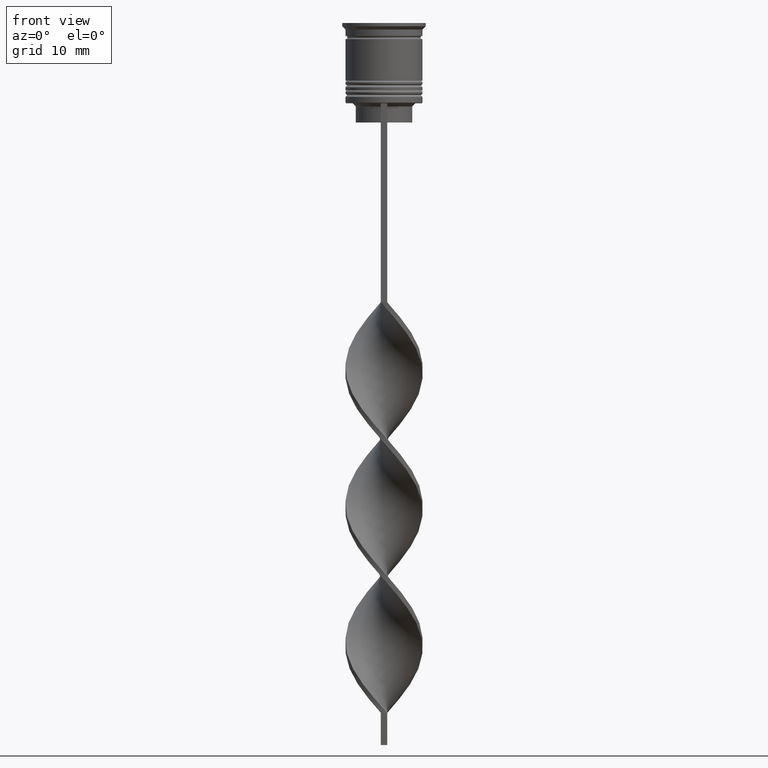
[diagram: clean part render]
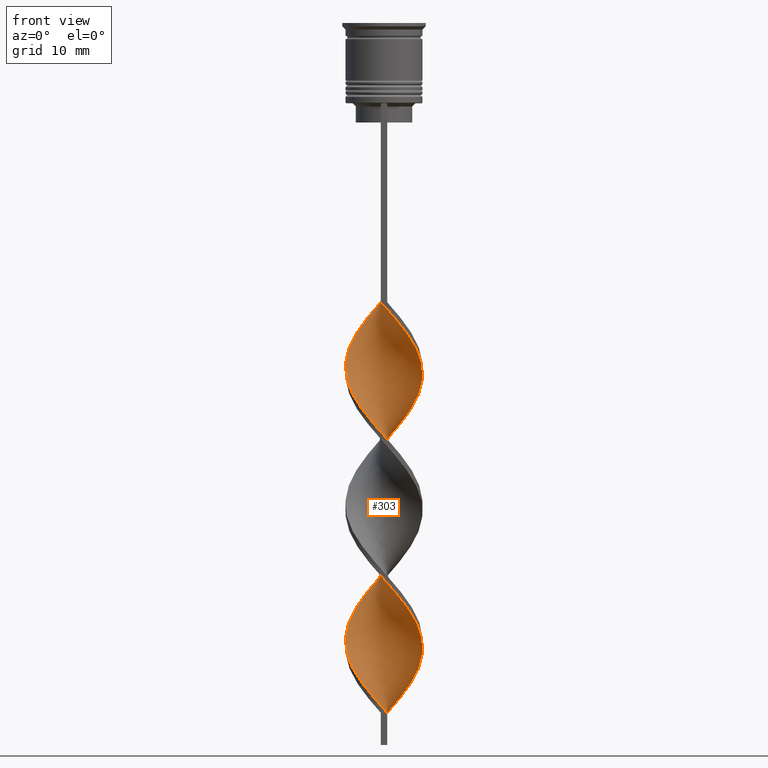
[diagram: same view with one face highlighted and labeled with its STEP entity id]
A machine part, front view. The second image highlights one B-rep face of the part: STEP entity #303.
In plain terms, the highlighted face is a freeform B-spline surface patch.
Its self-contained STEP definition (entity closure, byte-faithful):
#5 = CARTESIAN_POINT ( 'NONE',  ( -2.345611019436007361, -5.545097739941143189, -61.55128205128204399 ) ) ;
#6 = CARTESIAN_POINT ( 'NONE',  ( -3.231067045089215384, 5.080374567897375293, -89.44871794871794179 ) ) ;
#21 = CARTESIAN_POINT ( 'NONE',  ( 0.2285318993335668514, 6.060710991611130360, -85.34615384615385381 ) ) ;
#23 = CARTESIAN_POINT ( 'NONE',  ( 5.432795012591221884, 2.595137443597920868, -77.96153846153845279 ) ) ;
#41 = CARTESIAN_POINT ( 'NONE',  ( -5.988975108237873712, 0.9574036273986648027, -95.19230769230769340 ) ) ;
#52 = CARTESIAN_POINT ( 'NONE',  ( -0.4999999999999997780, -6.000000000000000000, -43.50000000000000000 ) ) ;
#57 = CARTESIAN_POINT ( 'NONE',  ( -4.653870821996361151, -3.819880413333762714, -100.9358974358974308 ) ) ;
#66 = CARTESIAN_POINT ( 'NONE',  ( 4.653870821996360263, -3.819880413333763158, -50.06410256410256210 ) ) ;
#70 = CARTESIAN_POINT ( 'NONE',  ( 5.988975108237873712, 0.9574036273986640255, -55.80769230769230660 ) ) ;
#74 = CARTESIAN_POINT ( 'NONE',  ( -5.787399899633756561, 1.660121200912507922, -94.37179487179486159 ) ) ;
#82 = CARTESIAN_POINT ( 'NONE',  ( 6.044068061194097119, -0.5036723384328415376, -54.16666666666665719 ) ) ;
#87 = CARTESIAN_POINT ( 'NONE',  ( -6.016521584715984972, -0.2268656444829071639, -76.32051282051281760 ) ) ;
#94 = CARTESIAN_POINT ( 'NONE',  ( -4.190053366537507706, -4.384962638200771146, -101.7564102564102484 ) ) ;
#109 = CARTESIAN_POINT ( 'NONE',  ( -3.018907784180933973, 5.260288998093236579, -68.93589743589743080 ) ) ;
#127 = CARTESIAN_POINT ( 'NONE',  ( 6.016521584715985860, 0.2268656444829105501, -54.98717948717948190 ) ) ;
#132 = CARTESIAN_POINT ( 'NONE',  ( 5.221935568727516852, 2.996896547440106140, -58.26923076923076650 ) ) ;
#164 = CARTESIAN_POINT ( 'NONE',  ( -1.921364894438377657, -5.705993072412531397, -84.52564102564103621 ) ) ;
#170 = CARTESIAN_POINT ( 'NONE',  ( -3.231067045089219825, -5.080374567897373517, -82.88461538461537259 ) ) ;
#186 = CARTESIAN_POINT ( 'NONE',  ( 4.352991323530322809, 4.159503159906207337, -102.5769230769230660 ) ) ;
#191 = CARTESIAN_POINT ( 'NONE',  ( 1.672314254691077640, -5.829906481789053352, -88.62820512820512420 ) ) ;
#203 = CARTESIAN_POINT ( 'NONE',  ( 5.988975108237873712, 0.9574036273986641365, -98.47435897435896379 ) ) ;
#207 = CARTESIAN_POINT ( 'NONE',  ( -3.847936200635251325, -4.688051999358552990, -82.06410256410255499 ) ) ;
#219 = CARTESIAN_POINT ( 'NONE',  ( 5.432795012591220107, -2.595137443597922200, -94.37179487179486159 ) ) ;
#223 = CARTESIAN_POINT ( 'NONE',  ( -5.221935568727517740, -2.996896547440105252, -79.60256410256410220 ) ) ;
#235 = CARTESIAN_POINT ( 'NONE',  ( -3.231067045089215384, 5.080374567897375293, -46.78205128205127750 ) ) ;
#236 = CARTESIAN_POINT ( 'NONE',  ( 4.653870821996360263, -3.819880413333763158, -92.73076923076922640 ) ) ;
#242 = ORIENTED_EDGE ( 'NONE', *, *, #1046, .T. ) ;
#252 = CARTESIAN_POINT ( 'NONE',  ( 4.858046446425391629, -3.630954320453867012, -70.57692307692306599 ) ) ;
#263 = CARTESIAN_POINT ( 'NONE',  ( 2.614197889543179887, -5.472697136436198484, -67.29487179487178139 ) ) ;
#265 = CARTESIAN_POINT ( 'NONE',  ( -1.921364894438372328, 5.705993072412534062, -87.80769230769230660 ) ) ;
#281 = CARTESIAN_POINT ( 'NONE',  ( 1.921364894438370330, -5.705993072412534062, -66.47435897435896379 ) ) ;
#298 = CARTESIAN_POINT ( 'NONE',  ( -4.190053366537507706, -4.384962638200770257, -59.08974358974359120 ) ) ;
#303 = ADVANCED_FACE ( 'NONE', ( #3413 ), #3040, .T. ) ;
#314 = CARTESIAN_POINT ( 'NONE',  ( -1.921364894438372328, 5.705993072412534062, -87.80769230769230660 ) ) ;
#315 = CARTESIAN_POINT ( 'NONE',  ( -5.585824691029640299, 2.362838774426349264, -93.55128205128204399 ) ) ;
#328 = CARTESIAN_POINT ( 'NONE',  ( -5.117688277455213708, -3.254798188466752951, -100.1153846153846132 ) ) ;
#342 = CARTESIAN_POINT ( 'NONE',  ( -2.345611019436006028, 5.545097739941144077, -68.11538461538459899 ) ) ;
#348 = CARTESIAN_POINT ( 'NONE',  ( -0.4999999999999997780, 6.000000000000000000, -86.16666666666667140 ) ) ;
#351 = CARTESIAN_POINT ( 'NONE',  ( -5.117688277455213708, -3.254798188466752951, -100.1153846153846274 ) ) ;
#356 = CARTESIAN_POINT ( 'NONE',  ( 1.672314254691077862, -5.829906481789053352, -45.96153846153845279 ) ) ;
#365 = CARTESIAN_POINT ( 'NONE',  ( 4.653870821996362039, 3.819880413333761826, -79.60256410256410220 ) ) ;
#373 = VERTEX_POINT ( 'NONE', #2045 ) ;
#378 = CARTESIAN_POINT ( 'NONE',  ( 0.2285318993335633819, -6.060710991611130360, -44.32051282051282470 ) ) ;
#389 = CARTESIAN_POINT ( 'NONE',  ( 3.018907784180934861, -5.260288998093235691, -47.60256410256408799 ) ) ;
#396 = CARTESIAN_POINT ( 'NONE',  ( -0.4999999999999997780, -6.000000000000000000, -43.50000000000000000 ) ) ;
#427 = CARTESIAN_POINT ( 'NONE',  ( 5.787399899633756561, 1.660121200912505479, -99.29487179487178139 ) ) ;
#447 = CARTESIAN_POINT ( 'NONE',  ( 5.117688277455213708, -3.254798188466753839, -93.55128205128204399 ) ) ;
#453 = CARTESIAN_POINT ( 'NONE',  ( 5.117688277455213708, -3.254798188466753839, -93.55128205128204399 ) ) ;
#467 = CARTESIAN_POINT ( 'NONE',  ( 4.190053366537506818, -4.384962638200772922, -91.91025641025643722 ) ) ;
#485 = CARTESIAN_POINT ( 'NONE',  ( -3.018907784180934417, 5.260288998093236579, -68.93589743589743080 ) ) ;
#490 = CARTESIAN_POINT ( 'NONE',  ( 0.2285318993335633819, -6.060710991611130360, -86.98717948717948900 ) ) ;
#500 = CARTESIAN_POINT ( 'NONE',  ( -3.231067045089219825, -5.080374567897373517, -82.88461538461537259 ) ) ;
#509 =( BOUNDED_CURVE ( )  B_SPLINE_CURVE ( 2, ( #2457, #1114, #2483, #3319, #235, #2226, #1941, #1082, #2500, #1925, #3335, #3284, #546, #1345, #1360, #2193, #2471, #803, #1894, #2165, #768, #3029, #5, #835, #533, #2703, #3270, #1653, #2755, #263, #3595, #929, #2044, #2807, #1994, #1410, #872, #1165, #1446, #2293, #3100, #1462, #2861, #3151, #365, #2027, #2569, #3404, #2821, #3372, #3135, #21, #348, #1686, #314, #599, #2521, #1722, #2276, #2553, #908, #3389, #74, #1478, #2788, #2586, #638, #1180, #1758, #328, #57, #94, #1131, #1200, #2315, #617, #1427, #2536, #1975 ),
 .UNSPECIFIED., .F., .T. ) 
 B_SPLINE_CURVE_WITH_KNOTS ( ( 3, 2, 2, 2, 2, 2, 2, 2, 2, 2, 2, 2, 2, 2, 2, 2, 2, 2, 2, 2, 2, 2, 2, 2, 2, 2, 2, 2, 2, 2, 2, 2, 2, 2, 2, 2, 2, 2, 2, 3 ),
 ( 0.000000000000000000, 0.01923076923076923184, 0.03846153846153846367, 0.05769230769230768857, 0.07692307692307692735, 0.09615384615384615918, 0.1153846153846153771, 0.1346153846153846090, 0.1538461538461538547, 0.1730769230769230449, 0.1923076923076923184, 0.2115384615384615363, 0.2307692307692307543, 0.2500000000000000000, 0.2692307692307692180, 0.2884615384615384359, 0.3076923076923077094, 0.3269230769230769273, 0.3461538461538460898, 0.3653846153846153633, 0.3846153846153846367, 0.4038461538461539102, 0.4230769230769230727, 0.4423076923076922906, 0.4615384615384615086, 0.4807692307692307820, 0.5000000000000000000, 0.5192307692307692735, 0.5384615384615384359, 0.5576923076923077094, 0.5769230769230768718, 0.5961538461538461453, 0.6153846153846154188, 0.6346153846153845812, 0.6538461538461538547, 0.6730769230769230171, 0.6923076923076921796, 0.7115384615384615641, 0.7307692307692307265, 0.7500000000000000000 ),
 .UNSPECIFIED. ) 
 CURVE ( )  GEOMETRIC_REPRESENTATION_ITEM ( )  RATIONAL_B_SPLINE_CURVE ( ( 1.000000000000000000, 0.9927088740980539727, 1.000000000000000000, 0.9927088740980539727, 1.000000000000000000, 0.9927088740980539727, 1.000000000000000000, 0.9927088740980539727, 1.000000000000000000, 0.9927088740980539727, 1.000000000000000000, 0.9927088740980539727, 1.000000000000000000, 0.9927088740980539727, 1.000000000000000000, 0.9927088740980539727, 1.000000000000000000, 0.9927088740980539727, 1.000000000000000000, 0.9927088740980539727, 1.000000000000000000, 0.9927088740980539727, 1.000000000000000000, 0.9927088740980539727, 1.000000000000000000, 0.9927088740980539727, 1.000000000000000000, 0.9927088740980539727, 1.000000000000000000, 0.9927088740980539727, 1.000000000000000000, 0.9927088740980539727, 1.000000000000000000, 0.9927088740980539727, 1.000000000000000000, 0.9927088740980539727, 1.000000000000000000, 0.9927088740980539727, 1.000000000000000000, 0.9927088740980539727, 1.000000000000000000, 0.9927088740980539727, 1.000000000000000000, 0.9927088740980539727, 1.000000000000000000, 0.9927088740980539727, 1.000000000000000000, 0.9927088740980539727, 1.000000000000000000, 0.9927088740980539727, 1.000000000000000000, 0.9927088740980539727, 1.000000000000000000, 0.9927088740980539727, 1.000000000000000000, 0.9927088740980539727, 1.000000000000000000, 0.9927088740980539727, 1.000000000000000000, 0.9927088740980539727, 1.000000000000000000, 0.9927088740980539727, 1.000000000000000000, 0.9927088740980539727, 1.000000000000000000, 0.9927088740980539727, 1.000000000000000000, 0.9927088740980539727, 1.000000000000000000, 0.9927088740980539727, 1.000000000000000000, 0.9927088740980539727, 1.000000000000000000, 0.9927088740980539727, 1.000000000000000000, 0.9927088740980539727, 1.000000000000000000, 0.9927088740980539727, 1.000000000000000000 ) ) 
 REPRESENTATION_ITEM ( '' )  );
#517 = CARTESIAN_POINT ( 'NONE',  ( -5.747901747727229171, -1.935476698729088563, -98.47435897435896379 ) ) ;
#533 = CARTESIAN_POINT ( 'NONE',  ( -0.9504230770123229810, -5.945308736700090968, -63.19230769230768630 ) ) ;
#534 = CARTESIAN_POINT ( 'NONE',  ( -0.4999999999999997780, 6.000000000000000000, -86.16666666666667140 ) ) ;
#546 = CARTESIAN_POINT ( 'NONE',  ( -6.016521584715985860, 0.2268656444829126040, -53.34615384615383959 ) ) ;
#547 = CARTESIAN_POINT ( 'NONE',  ( 1.228531899333561661, -5.939289008388869640, -65.65384615384614619 ) ) ;
#564 = CARTESIAN_POINT ( 'NONE',  ( 5.117688277455216372, 3.254798188466750730, -78.78205128205127039 ) ) ;
#584 = CARTESIAN_POINT ( 'NONE',  ( 3.018907784180936194, 5.260288998093234802, -82.06410256410255499 ) ) ;
#599 = CARTESIAN_POINT ( 'NONE',  ( -2.614197889543182107, 5.472697136436197596, -88.62820512820512420 ) ) ;
#611 = CARTESIAN_POINT ( 'NONE',  ( 4.352991323530322809, 4.159503159906207337, -59.91025641025640880 ) ) ;
#617 = CARTESIAN_POINT ( 'NONE',  ( -1.672314254691080082, -5.829906481789052464, -105.0384615384615188 ) ) ;
#620 = CARTESIAN_POINT ( 'NONE',  ( -4.190053366537507706, -4.384962638200770257, -101.7564102564102484 ) ) ;
#631 = CARTESIAN_POINT ( 'NONE',  ( -0.9504230770123187622, 5.945308736700090968, -66.47435897435896379 ) ) ;
#638 = CARTESIAN_POINT ( 'NONE',  ( -5.895984904460662257, -1.219574518580964106, -97.65384615384614619 ) ) ;
#663 = CARTESIAN_POINT ( 'NONE',  ( 5.585824691029639411, 2.362838774426348376, -57.44871794871794890 ) ) ;
#688 = CARTESIAN_POINT ( 'NONE',  ( -0.4999999999999997780, 6.000000000000000888, -43.50000000000000000 ) ) ;
#696 = CARTESIAN_POINT ( 'NONE',  ( 3.018907784180934861, -5.260288998093235691, -90.26923076923075939 ) ) ;
#713 = CARTESIAN_POINT ( 'NONE',  ( 0.9504230770123207606, -5.945308736700090968, -87.80769230769230660 ) ) ;
#718 = CARTESIAN_POINT ( 'NONE',  ( -5.787399899633756561, -1.660121200912506367, -77.96153846153845279 ) ) ;
#730 = CARTESIAN_POINT ( 'NONE',  ( 0.4999999999999990563, -6.000000000000000000, -107.5000000000000000 ) ) ;
#733 = CARTESIAN_POINT ( 'NONE',  ( 2.614197889543183884, 5.472697136436196708, -62.37179487179486870 ) ) ;
#738 = CARTESIAN_POINT ( 'NONE',  ( 4.653870821996360263, -3.819880413333763158, -92.73076923076922640 ) ) ;
#754 = CARTESIAN_POINT ( 'NONE',  ( 0.2285318993335633819, -6.060710991611129472, -86.98717948717948900 ) ) ;
#768 = CARTESIAN_POINT ( 'NONE',  ( -3.604480575359222172, -4.822625818147002974, -59.91025641025640880 ) ) ;
#770 = CARTESIAN_POINT ( 'NONE',  ( -6.016521584715984972, -0.2268656444829071639, -76.32051282051281760 ) ) ;
#786 = CARTESIAN_POINT ( 'NONE',  ( -6.044068061194097119, -0.5036723384328408715, -96.83333333333332860 ) ) ;
#803 = CARTESIAN_POINT ( 'NONE',  ( -5.117688277455213708, -3.254798188466752951, -57.44871794871794890 ) ) ;
#804 = CARTESIAN_POINT ( 'NONE',  ( 5.221935568727515964, -2.996896547440107916, -71.39743589743588359 ) ) ;
#820 = CARTESIAN_POINT ( 'NONE',  ( -6.016521584715985860, 0.2268656444829126040, -53.34615384615383959 ) ) ;
#835 = CARTESIAN_POINT ( 'NONE',  ( -1.672314254691080082, -5.829906481789052464, -62.37179487179486870 ) ) ;
#836 = CARTESIAN_POINT ( 'NONE',  ( -4.858046446425393405, 3.630954320453865680, -91.91025641025643722 ) ) ;
#846 = VERTEX_POINT ( 'NONE', #730 ) ;
#854 = CARTESIAN_POINT ( 'NONE',  ( -3.231067045089215384, 5.080374567897375293, -46.78205128205127750 ) ) ;
#872 = CARTESIAN_POINT ( 'NONE',  ( 5.787399899633756561, -1.660121200912508366, -73.03846153846153300 ) ) ;
#902 = CARTESIAN_POINT ( 'NONE',  ( 5.895984904460662257, -1.219574518580966105, -53.34615384615383959 ) ) ;
#908 = CARTESIAN_POINT ( 'NONE',  ( -5.221935568727515964, 2.996896547440107916, -92.73076923076922640 ) ) ;
#917 = CARTESIAN_POINT ( 'NONE',  ( 5.988975108237873712, 0.9574036273986641365, -55.80769230769230660 ) ) ;
#922 = CARTESIAN_POINT ( 'NONE',  ( -5.988975108237874601, -0.9574036273986618051, -77.14102564102563520 ) ) ;
#929 = CARTESIAN_POINT ( 'NONE',  ( 3.847936200635249548, -4.688051999358554767, -68.93589743589743080 ) ) ;
#942 = CARTESIAN_POINT ( 'NONE',  ( 2.345611019436006028, -5.545097739941144077, -46.78205128205127750 ) ) ;
#957 = CARTESIAN_POINT ( 'NONE',  ( 5.585824691029640299, 2.362838774426348376, -57.44871794871794890 ) ) ;
#961 = CARTESIAN_POINT ( 'NONE',  ( 0.9504230770123207606, -5.945308736700090968, -45.14102564102563520 ) ) ;
#964 = DIRECTION ( 'NONE',  ( 0.000000000000000000, 1.000000000000000000, 0.000000000000000000 ) ) ;
#965 = VERTEX_POINT ( 'NONE', #2721 ) ;
#982 = CARTESIAN_POINT ( 'NONE',  ( 2.614197889543183884, 5.472697136436196708, -105.0384615384615188 ) ) ;
#997 = CARTESIAN_POINT ( 'NONE',  ( 4.858046446425394294, 3.630954320453863016, -59.08974358974359120 ) ) ;
#1015 = CARTESIAN_POINT ( 'NONE',  ( -1.921364894438372328, 5.705993072412534062, -45.14102564102563520 ) ) ;
#1020 = CARTESIAN_POINT ( 'NONE',  ( 5.895984904460662257, -1.219574518580966105, -96.01282051282051100 ) ) ;
#1033 = CARTESIAN_POINT ( 'NONE',  ( 3.231067045089216716, 5.080374567897374405, -104.2179487179487012 ) ) ;
#1046 = EDGE_CURVE ( 'NONE', #3249, #846, #509, .T. ) ;
#1052 = CARTESIAN_POINT ( 'NONE',  ( -5.117688277455211932, 3.254798188466756947, -72.21794871794871540 ) ) ;
#1057 = CARTESIAN_POINT ( 'NONE',  ( 3.847936200635250881, 4.688051999358552990, -103.3974358974358836 ) ) ;
#1070 = CARTESIAN_POINT ( 'NONE',  ( 3.847936200635250437, 4.688051999358552990, -103.3974358974358694 ) ) ;
#1072 = CARTESIAN_POINT ( 'NONE',  ( 0.5000000000000000000, 2.000000000000000000, -107.5000000000000000 ) ) ;
#1082 = CARTESIAN_POINT ( 'NONE',  ( -4.858046446425393405, 3.630954320453865680, -49.24358974358974450 ) ) ;
#1083 = CARTESIAN_POINT ( 'NONE',  ( -5.787399899633756561, 1.660121200912507922, -51.70512820512820440 ) ) ;
#1099 = CARTESIAN_POINT ( 'NONE',  ( -4.653870821996361151, -3.819880413333762714, -58.26923076923076650 ) ) ;
#1114 = CARTESIAN_POINT ( 'NONE',  ( -1.228531899333562993, 5.939289008388869640, -44.32051282051282470 ) ) ;
#1115 = CARTESIAN_POINT ( 'NONE',  ( -4.352991323530321033, 4.159503159906209113, -91.08974358974359120 ) ) ;
#1131 = CARTESIAN_POINT ( 'NONE',  ( -3.604480575359222172, -4.822625818147002974, -102.5769230769230660 ) ) ;
#1132 = CARTESIAN_POINT ( 'NONE',  ( -5.221935568727515964, 2.996896547440107916, -50.06410256410256210 ) ) ;
#1151 = CARTESIAN_POINT ( 'NONE',  ( -3.604480575359222172, -4.822625818147002974, -59.91025641025640880 ) ) ;
#1159 = CARTESIAN_POINT ( 'NONE',  ( 3.847936200635250881, 4.688051999358552990, -60.73076923076922640 ) ) ;
#1165 = CARTESIAN_POINT ( 'NONE',  ( 5.988975108237873712, -0.9574036273986642476, -73.85897435897436480 ) ) ;
#1180 = CARTESIAN_POINT ( 'NONE',  ( -5.747901747727229171, -1.935476698729088785, -98.47435897435896379 ) ) ;
#1189 = CARTESIAN_POINT ( 'NONE',  ( -0.4999999999999997780, -6.000000000000000000, -43.50000000000000000 ) ) ;
#1200 = CARTESIAN_POINT ( 'NONE',  ( -3.018907784180935305, -5.260288998093234802, -103.3974358974358836 ) ) ;
#1234 = CARTESIAN_POINT ( 'NONE',  ( 1.228531899333565880, 5.939289008388869640, -64.01282051282051100 ) ) ;
#1269 = CARTESIAN_POINT ( 'NONE',  ( 0.5000000000000005551, 6.000000000000000000, -64.83333333333332860 ) ) ;
#1294 = CARTESIAN_POINT ( 'NONE',  ( -0.4999999999999997780, 6.000000000000000000, -43.50000000000000000 ) ) ;
#1301 = CARTESIAN_POINT ( 'NONE',  ( 6.016521584715985860, 0.2268656444829105501, -97.65384615384614619 ) ) ;
#1311 = CARTESIAN_POINT ( 'NONE',  ( 3.847936200635250437, 4.688051999358552990, -60.73076923076922640 ) ) ;
#1315 = CARTESIAN_POINT ( 'NONE',  ( -1.921364894438377657, -5.705993072412531397, -84.52564102564103621 ) ) ;
#1328 = CARTESIAN_POINT ( 'NONE',  ( -5.747901747727229171, 1.935476698729089007, -73.85897435897436480 ) ) ;
#1333 = CARTESIAN_POINT ( 'NONE',  ( 4.352991323530322809, 4.159503159906207337, -102.5769230769230660 ) ) ;
#1345 = CARTESIAN_POINT ( 'NONE',  ( -6.044068061194097119, -0.5036723384328409825, -54.16666666666666430 ) ) ;
#1346 = CARTESIAN_POINT ( 'NONE',  ( 6.044068061194097119, -0.5036723384328415376, -96.83333333333332860 ) ) ;
#1360 = CARTESIAN_POINT ( 'NONE',  ( -5.895984904460662257, -1.219574518580964106, -54.98717948717948190 ) ) ;
#1361 = CARTESIAN_POINT ( 'NONE',  ( -5.432795012591221884, -2.595137443597919980, -56.62820512820513130 ) ) ;
#1374 = CARTESIAN_POINT ( 'NONE',  ( 3.604480575359223060, 4.822625818147002086, -81.24358974358973740 ) ) ;
#1392 = CARTESIAN_POINT ( 'NONE',  ( 5.988975108237873712, -0.9574036273986643586, -73.85897435897436480 ) ) ;
#1410 = CARTESIAN_POINT ( 'NONE',  ( 5.585824691029637634, -2.362838774426352373, -72.21794871794871540 ) ) ;
#1411 = CARTESIAN_POINT ( 'NONE',  ( 3.847936200635249548, -4.688051999358554767, -68.93589743589743080 ) ) ;
#1427 = CARTESIAN_POINT ( 'NONE',  ( -0.9504230770123229810, -5.945308736700090968, -105.8589743589743506 ) ) ;
#1429 = CARTESIAN_POINT ( 'NONE',  ( -5.787399899633756561, 1.660121200912507922, -94.37179487179486159 ) ) ;
#1438 = CARTESIAN_POINT ( 'NONE',  ( 0.5000000000000005551, 6.000000000000000000, -64.83333333333332860 ) ) ;
#1446 = CARTESIAN_POINT ( 'NONE',  ( 6.016521584715985860, -0.2268656444829146579, -74.67948717948718240 ) ) ;
#1456 = CARTESIAN_POINT ( 'NONE',  ( -3.604480575359219507, 4.822625818147005639, -69.75641025641024839 ) ) ;
#1462 = CARTESIAN_POINT ( 'NONE',  ( 5.747901747727230060, 1.935476698729086786, -77.14102564102563520 ) ) ;
#1464 = CARTESIAN_POINT ( 'NONE',  ( -0.2285318993335660742, -6.060710991611129472, -106.6794871794871682 ) ) ;
#1469 = CARTESIAN_POINT ( 'NONE',  ( 4.190053366537506818, -4.384962638200772922, -49.24358974358973740 ) ) ;
#1473 = CARTESIAN_POINT ( 'NONE',  ( -0.2285318993335620774, 6.060710991611130360, -65.65384615384614619 ) ) ;
#1478 = CARTESIAN_POINT ( 'NONE',  ( -5.988975108237873712, 0.9574036273986648027, -95.19230769230769340 ) ) ;
#1480 = CARTESIAN_POINT ( 'NONE',  ( -4.653870821996361151, -3.819880413333762714, -100.9358974358974308 ) ) ;
#1493 = CARTESIAN_POINT ( 'NONE',  ( 6.016521584715985860, 0.2268656444829105501, -54.98717948717948190 ) ) ;
#1508 = CARTESIAN_POINT ( 'NONE',  ( 3.604480575359220396, -4.822625818147004750, -48.42307692307691269 ) ) ;
#1534 = CARTESIAN_POINT ( 'NONE',  ( 3.604480575359220396, -4.822625818147004750, -91.08974358974359120 ) ) ;
#1548 = CARTESIAN_POINT ( 'NONE',  ( -1.228531899333563215, 5.939289008388869640, -44.32051282051282470 ) ) ;
#1570 = CARTESIAN_POINT ( 'NONE',  ( 5.747901747727229171, -1.935476698729089451, -95.19230769230769340 ) ) ;
#1576 = CARTESIAN_POINT ( 'NONE',  ( 0.9504230770123207606, -5.945308736700090968, -87.80769230769230660 ) ) ;
#1588 = CARTESIAN_POINT ( 'NONE',  ( 4.352991323530322809, 4.159503159906207337, -59.91025641025640880 ) ) ;
#1603 = CARTESIAN_POINT ( 'NONE',  ( -5.432795012591220107, 2.595137443597922644, -73.03846153846153300 ) ) ;
#1607 = CARTESIAN_POINT ( 'NONE',  ( 3.018907784180934417, -5.260288998093235691, -90.26923076923077360 ) ) ;
#1620 = CARTESIAN_POINT ( 'NONE',  ( -5.585824691029640299, -2.362838774426346156, -78.78205128205127039 ) ) ;
#1636 = CARTESIAN_POINT ( 'NONE',  ( -5.117688277455213708, -3.254798188466752951, -57.44871794871794890 ) ) ;
#1653 = CARTESIAN_POINT ( 'NONE',  ( 1.228531899333561661, -5.939289008388869640, -65.65384615384614619 ) ) ;
#1654 = CARTESIAN_POINT ( 'NONE',  ( -1.228531899333563215, 5.939289008388869640, -86.98717948717948900 ) ) ;
#1667 = EDGE_CURVE ( 'NONE', #965, #3249, #2057, .T. ) ;
#1668 = CARTESIAN_POINT ( 'NONE',  ( -5.988975108237873712, 0.9574036273986648027, -52.52564102564103621 ) ) ;
#1680 = ORIENTED_EDGE ( 'NONE', *, *, #1667, .T. ) ;
#1686 = CARTESIAN_POINT ( 'NONE',  ( -1.228531899333562993, 5.939289008388869640, -86.98717948717948900 ) ) ;
#1687 = CARTESIAN_POINT ( 'NONE',  ( -3.847936200635249993, 4.688051999358553878, -90.26923076923075939 ) ) ;
#1705 = CARTESIAN_POINT ( 'NONE',  ( -4.352991323530321033, 4.159503159906209113, -48.42307692307691269 ) ) ;
#1722 = CARTESIAN_POINT ( 'NONE',  ( -3.847936200635249993, 4.688051999358553878, -90.26923076923077360 ) ) ;
#1723 = CARTESIAN_POINT ( 'NONE',  ( -2.345611019436007361, -5.545097739941143189, -104.2179487179487012 ) ) ;
#1731 = CARTESIAN_POINT ( 'NONE',  ( 3.231067045089216716, 5.080374567897374405, -61.55128205128204399 ) ) ;
#1746 = CARTESIAN_POINT ( 'NONE',  ( 0.9504230770123207606, -5.945308736700090968, -45.14102564102563520 ) ) ;
#1750 = CARTESIAN_POINT ( 'NONE',  ( 1.921364894438374549, 5.705993072412533174, -63.19230769230768630 ) ) ;
#1758 = CARTESIAN_POINT ( 'NONE',  ( -5.432795012591221884, -2.595137443597919980, -99.29487179487178139 ) ) ;
#1777 = CARTESIAN_POINT ( 'NONE',  ( -0.9504230770123229810, -5.945308736700090968, -105.8589743589743506 ) ) ;
#1783 = CARTESIAN_POINT ( 'NONE',  ( 2.345611019436006028, -5.545097739941144077, -46.78205128205127750 ) ) ;
#1808 = CARTESIAN_POINT ( 'NONE',  ( 4.653870821996360263, -3.819880413333763158, -50.06410256410256210 ) ) ;
#1822 = CARTESIAN_POINT ( 'NONE',  ( 0.5000000000000005551, 6.000000000000000000, -107.5000000000000000 ) ) ;
#1827 = CARTESIAN_POINT ( 'NONE',  ( -0.4999999999999997780, -6.000000000000000000, -86.16666666666667140 ) ) ;
#1841 = CARTESIAN_POINT ( 'NONE',  ( 3.604480575359220396, -4.822625818147004750, -91.08974358974359120 ) ) ;
#1845 = CARTESIAN_POINT ( 'NONE',  ( 2.345611019436006028, -5.545097739941144077, -89.44871794871794179 ) ) ;
#1862 = CARTESIAN_POINT ( 'NONE',  ( -5.895984904460662257, 1.219574518580968325, -74.67948717948718240 ) ) ;
#1867 = CARTESIAN_POINT ( 'NONE',  ( 5.747901747727229171, -1.935476698729089451, -95.19230769230769340 ) ) ;
#1883 = CARTESIAN_POINT ( 'NONE',  ( -4.352991323530323697, -4.159503159906206449, -81.24358974358973740 ) ) ;
#1894 = CARTESIAN_POINT ( 'NONE',  ( -4.653870821996361151, -3.819880413333762714, -58.26923076923076650 ) ) ;
#1895 = CARTESIAN_POINT ( 'NONE',  ( -3.604480575359219507, 4.822625818147005639, -69.75641025641024839 ) ) ;
#1909 = CARTESIAN_POINT ( 'NONE',  ( -5.895984904460662257, -1.219574518580964106, -97.65384615384614619 ) ) ;
#1925 = CARTESIAN_POINT ( 'NONE',  ( -5.585824691029639411, 2.362838774426349264, -50.88461538461537970 ) ) ;
#1926 = CARTESIAN_POINT ( 'NONE',  ( 5.787399899633756561, -1.660121200912508366, -73.03846153846153300 ) ) ;
#1941 = CARTESIAN_POINT ( 'NONE',  ( -4.352991323530321033, 4.159503159906209113, -48.42307692307691269 ) ) ;
#1942 = CARTESIAN_POINT ( 'NONE',  ( 4.190053366537511259, 4.384962638200768481, -80.42307692307691980 ) ) ;
#1958 = CARTESIAN_POINT ( 'NONE',  ( 1.672314254691080748, 5.829906481789052464, -83.70512820512820440 ) ) ;
#1975 = CARTESIAN_POINT ( 'NONE',  ( 0.4999999999999990563, -6.000000000000000000, -107.5000000000000000 ) ) ;
#1977 = CARTESIAN_POINT ( 'NONE',  ( 6.044068061194097119, 0.5036723384328400943, -75.49999999999998579 ) ) ;
#1994 = CARTESIAN_POINT ( 'NONE',  ( 5.221935568727515964, -2.996896547440107916, -71.39743589743588359 ) ) ;
#2019 = CARTESIAN_POINT ( 'NONE',  ( -1.672314254691075641, 5.829906481789053352, -67.29487179487178139 ) ) ;
#2027 = CARTESIAN_POINT ( 'NONE',  ( 4.190053366537511259, 4.384962638200769369, -80.42307692307691980 ) ) ;
#2044 = CARTESIAN_POINT ( 'NONE',  ( 4.352991323530320145, -4.159503159906210001, -69.75641025641024839 ) ) ;
#2045 = CARTESIAN_POINT ( 'NONE',  ( 0.5000000000000005551, 6.000000000000000000, -107.5000000000000000 ) ) ;
#2057 = LINE ( 'NONE', #396, #2716 ) ;
#2070 = CARTESIAN_POINT ( 'NONE',  ( 5.221935568727516852, 2.996896547440106140, -58.26923076923076650 ) ) ;
#2074 = CARTESIAN_POINT ( 'NONE',  ( -5.747901747727229171, 1.935476698729089229, -73.85897435897436480 ) ) ;
#2096 = CARTESIAN_POINT ( 'NONE',  ( 1.921364894438374549, 5.705993072412533174, -105.8589743589743506 ) ) ;
#2110 = CARTESIAN_POINT ( 'NONE',  ( 1.672314254691077862, -5.829906481789053352, -88.62820512820513841 ) ) ;
#2127 = CARTESIAN_POINT ( 'NONE',  ( 5.221935568727516852, 2.996896547440106140, -100.9358974358974308 ) ) ;
#2132 = CARTESIAN_POINT ( 'NONE',  ( 1.228531899333565880, 5.939289008388869640, -106.6794871794871824 ) ) ;
#2148 = CARTESIAN_POINT ( 'NONE',  ( 1.921364894438374549, 5.705993072412533174, -105.8589743589743506 ) ) ;
#2153 = CARTESIAN_POINT ( 'NONE',  ( 5.988975108237873712, 0.9574036273986640255, -98.47435897435896379 ) ) ;
#2165 = CARTESIAN_POINT ( 'NONE',  ( -4.190053366537507706, -4.384962638200771146, -59.08974358974358410 ) ) ;
#2167 = CARTESIAN_POINT ( 'NONE',  ( 3.231067045089216716, 5.080374567897374405, -61.55128205128204399 ) ) ;
#2171 = CARTESIAN_POINT ( 'NONE',  ( 5.585824691029639411, 2.362838774426348376, -100.1153846153846132 ) ) ;
#2181 = CARTESIAN_POINT ( 'NONE',  ( 1.228531899333566102, 5.939289008388869640, -106.6794871794871682 ) ) ;
#2191 = EDGE_LOOP ( 'NONE', ( #1680, #242, #2435, #3439 ) ) ;
#2193 = CARTESIAN_POINT ( 'NONE',  ( -5.747901747727229171, -1.935476698729088785, -55.80769230769230660 ) ) ;
#2198 = CARTESIAN_POINT ( 'NONE',  ( -5.585824691029640299, 2.362838774426349264, -50.88461538461538680 ) ) ;
#2214 = CARTESIAN_POINT ( 'NONE',  ( -3.018907784180935749, -5.260288998093234802, -60.73076923076922640 ) ) ;
#2226 = CARTESIAN_POINT ( 'NONE',  ( -3.847936200635249993, 4.688051999358553878, -47.60256410256409509 ) ) ;
#2227 = CARTESIAN_POINT ( 'NONE',  ( 0.2285318993335668514, 6.060710991611129472, -85.34615384615383959 ) ) ;
#2243 = CARTESIAN_POINT ( 'NONE',  ( 2.614197889543179887, -5.472697136436198484, -67.29487179487178139 ) ) ;
#2272 = CARTESIAN_POINT ( 'NONE',  ( 5.117688277455213708, -3.254798188466753839, -50.88461538461537970 ) ) ;
#2276 = CARTESIAN_POINT ( 'NONE',  ( -4.352991323530321033, 4.159503159906209113, -91.08974358974359120 ) ) ;
#2284 = CARTESIAN_POINT ( 'NONE',  ( 5.432795012591220107, -2.595137443597922200, -51.70512820512820440 ) ) ;
#2289 = CARTESIAN_POINT ( 'NONE',  ( 3.018907784180934417, -5.260288998093235691, -47.60256410256409509 ) ) ;
#2293 = CARTESIAN_POINT ( 'NONE',  ( 6.044068061194097119, 0.5036723384328402053, -75.50000000000000000 ) ) ;
#2315 = CARTESIAN_POINT ( 'NONE',  ( -2.345611019436007361, -5.545097739941143189, -104.2179487179487012 ) ) ;
#2327 = CARTESIAN_POINT ( 'NONE',  ( 1.672314254691077640, -5.829906481789053352, -45.96153846153845990 ) ) ;
#2338 = CARTESIAN_POINT ( 'NONE',  ( -1.672314254691080304, -5.829906481789052464, -105.0384615384615330 ) ) ;
#2343 = CARTESIAN_POINT ( 'NONE',  ( 5.895984904460662257, -1.219574518580966105, -53.34615384615383959 ) ) ;
#2347 = CARTESIAN_POINT ( 'NONE',  ( -4.653870821996360263, 3.819880413333763158, -71.39743589743588359 ) ) ;
#2366 = CARTESIAN_POINT ( 'NONE',  ( -4.352991323530323697, -4.159503159906206449, -81.24358974358973740 ) ) ;
#2383 = CARTESIAN_POINT ( 'NONE',  ( -1.672314254691075641, 5.829906481789053352, -67.29487179487178139 ) ) ;
#2404 = CARTESIAN_POINT ( 'NONE',  ( -6.044068061194097119, 0.5036723384328423148, -75.49999999999998579 ) ) ;
#2409 = CARTESIAN_POINT ( 'NONE',  ( 4.858046446425394294, 3.630954320453863016, -101.7564102564102484 ) ) ;
#2421 = CARTESIAN_POINT ( 'NONE',  ( -2.345611019436006028, 5.545097739941144077, -68.11538461538459899 ) ) ;
#2425 = CARTESIAN_POINT ( 'NONE',  ( 5.432795012591220107, -2.595137443597922200, -94.37179487179486159 ) ) ;
#2435 = ORIENTED_EDGE ( 'NONE', *, *, #2451, .F. ) ;
#2440 = CARTESIAN_POINT ( 'NONE',  ( 1.921364894438374549, 5.705993072412533174, -63.19230769230768630 ) ) ;
#2445 = CARTESIAN_POINT ( 'NONE',  ( -2.614197889543184328, -5.472697136436196708, -83.70512820512820440 ) ) ;
#2451 = EDGE_CURVE ( 'NONE', #373, #846, #2941, .T. ) ;
#2457 = CARTESIAN_POINT ( 'NONE',  ( -0.4999999999999997780, 6.000000000000000888, -43.50000000000000000 ) ) ;
#2459 = CARTESIAN_POINT ( 'NONE',  ( 5.585824691029640299, 2.362838774426348376, -100.1153846153846274 ) ) ;
#2471 = CARTESIAN_POINT ( 'NONE',  ( -5.432795012591221884, -2.595137443597919980, -56.62820512820513130 ) ) ;
#2473 = CARTESIAN_POINT ( 'NONE',  ( -5.895984904460662257, -1.219574518580964106, -54.98717948717948190 ) ) ;
#2483 = CARTESIAN_POINT ( 'NONE',  ( -1.921364894438372328, 5.705993072412534062, -45.14102564102563520 ) ) ;
#2485 = CARTESIAN_POINT ( 'NONE',  ( -2.345611019436007361, -5.545097739941143189, -61.55128205128204399 ) ) ;
#2488 = CARTESIAN_POINT ( 'NONE',  ( 0.5000000000000005551, 6.000000000000000000, -107.5000000000000000 ) ) ;
#2500 = CARTESIAN_POINT ( 'NONE',  ( -5.221935568727515964, 2.996896547440107916, -50.06410256410256210 ) ) ;
#2503 = CARTESIAN_POINT ( 'NONE',  ( -3.847936200635249993, 4.688051999358553878, -47.60256410256408799 ) ) ;
#2521 = CARTESIAN_POINT ( 'NONE',  ( -3.231067045089215384, 5.080374567897375293, -89.44871794871794179 ) ) ;
#2522 = CARTESIAN_POINT ( 'NONE',  ( 4.653870821996362039, 3.819880413333761826, -79.60256410256410220 ) ) ;
#2536 = CARTESIAN_POINT ( 'NONE',  ( -0.2285318993335660742, -6.060710991611130360, -106.6794871794871824 ) ) ;
#2537 = CARTESIAN_POINT ( 'NONE',  ( 5.895984904460663145, 1.219574518580960998, -76.32051282051281760 ) ) ;
#2553 = CARTESIAN_POINT ( 'NONE',  ( -4.858046446425393405, 3.630954320453865680, -91.91025641025643722 ) ) ;
#2564 = CARTESIAN_POINT ( 'NONE',  ( -6.044068061194097119, 0.5036723384328423148, -75.50000000000000000 ) ) ;
#2569 = CARTESIAN_POINT ( 'NONE',  ( 3.604480575359223060, 4.822625818147002086, -81.24358974358973740 ) ) ;
#2581 = CARTESIAN_POINT ( 'NONE',  ( -5.432795012591220107, 2.595137443597922644, -73.03846153846153300 ) ) ;
#2586 = CARTESIAN_POINT ( 'NONE',  ( -6.044068061194097119, -0.5036723384328409825, -96.83333333333332860 ) ) ;
#2611 = CARTESIAN_POINT ( 'NONE',  ( 5.747901747727229171, -1.935476698729089451, -52.52564102564103621 ) ) ;
#2616 = CARTESIAN_POINT ( 'NONE',  ( 5.787399899633756561, 1.660121200912505479, -56.62820512820513130 ) ) ;
#2650 = CARTESIAN_POINT ( 'NONE',  ( -5.988975108237873712, -0.9574036273986618051, -77.14102564102563520 ) ) ;
#2673 = CARTESIAN_POINT ( 'NONE',  ( 4.858046446425394294, 3.630954320453863016, -101.7564102564102484 ) ) ;
#2679 = CARTESIAN_POINT ( 'NONE',  ( -4.858046446425396070, -3.630954320453860351, -80.42307692307691980 ) ) ;
#2690 = CARTESIAN_POINT ( 'NONE',  ( -0.9504230770123187622, 5.945308736700090968, -66.47435897435896379 ) ) ;
#2703 = CARTESIAN_POINT ( 'NONE',  ( -0.2285318993335660742, -6.060710991611130360, -64.01282051282051100 ) ) ;
#2705 = CARTESIAN_POINT ( 'NONE',  ( -0.4999999999999997780, -6.000000000000000000, -86.16666666666667140 ) ) ;
#2709 = CARTESIAN_POINT ( 'NONE',  ( 5.221935568727516852, 2.996896547440106140, -100.9358974358974308 ) ) ;
#2716 = VECTOR ( 'NONE', #964, 1000.000000000000000 ) ;
#2721 = CARTESIAN_POINT ( 'NONE',  ( -0.4999999999999997780, -6.000000000000000000, -43.50000000000000000 ) ) ;
#2723 = CARTESIAN_POINT ( 'NONE',  ( -1.228531899333566990, -5.939289008388869640, -85.34615384615383959 ) ) ;
#2742 = CARTESIAN_POINT ( 'NONE',  ( 2.345611019436010469, 5.545097739941142301, -82.88461538461537259 ) ) ;
#2755 = CARTESIAN_POINT ( 'NONE',  ( 1.921364894438370330, -5.705993072412534062, -66.47435897435896379 ) ) ;
#2756 = CARTESIAN_POINT ( 'NONE',  ( -4.858046446425393405, 3.630954320453865680, -49.24358974358973740 ) ) ;
#2772 = CARTESIAN_POINT ( 'NONE',  ( 5.585824691029638522, -2.362838774426352373, -72.21794871794871540 ) ) ;
#2788 = CARTESIAN_POINT ( 'NONE',  ( -6.016521584715985860, 0.2268656444829126040, -96.01282051282051100 ) ) ;
#2792 = CARTESIAN_POINT ( 'NONE',  ( -5.221935568727515964, 2.996896547440107916, -92.73076923076922640 ) ) ;
#2807 = CARTESIAN_POINT ( 'NONE',  ( 4.858046446425391629, -3.630954320453867012, -70.57692307692306599 ) ) ;
#2808 = CARTESIAN_POINT ( 'NONE',  ( 0.9504230770123263117, 5.945308736700090968, -84.52564102564103621 ) ) ;
#2821 = CARTESIAN_POINT ( 'NONE',  ( 2.345611019436010469, 5.545097739941142301, -82.88461538461537259 ) ) ;
#2834 = CARTESIAN_POINT ( 'NONE',  ( 2.614197889543183884, 5.472697136436196708, -62.37179487179486870 ) ) ;
#2844 = CARTESIAN_POINT ( 'NONE',  ( -5.432795012591221884, -2.595137443597919980, -99.29487179487178139 ) ) ;
#2861 = CARTESIAN_POINT ( 'NONE',  ( 5.432795012591221884, 2.595137443597920868, -77.96153846153845279 ) ) ;
#2891 = CARTESIAN_POINT ( 'NONE',  ( 5.432795012591220107, -2.595137443597922200, -51.70512820512820440 ) ) ;
#2911 = CARTESIAN_POINT ( 'NONE',  ( 5.747901747727229171, -1.935476698729089451, -52.52564102564102910 ) ) ;
#2924 = CARTESIAN_POINT ( 'NONE',  ( 2.614197889543183884, 5.472697136436196708, -105.0384615384615330 ) ) ;
#2941 = B_SPLINE_CURVE_WITH_KNOTS ( 'NONE', 3,
 ( #2488, #1072, #3067, #3288 ),
 .UNSPECIFIED., .F., .F.,
 ( 4, 4 ),
 ( 0.000000000000000000, 1.000000000000000000 ),
 .UNSPECIFIED. ) ;
#2942 = CARTESIAN_POINT ( 'NONE',  ( -4.858046446425396070, -3.630954320453860351, -80.42307692307691980 ) ) ;
#2947 = CARTESIAN_POINT ( 'NONE',  ( 4.190053366537506818, -4.384962638200773810, -91.91025641025643722 ) ) ;
#2963 = CARTESIAN_POINT ( 'NONE',  ( -2.614197889543184328, -5.472697136436196708, -83.70512820512820440 ) ) ;
#2983 = CARTESIAN_POINT ( 'NONE',  ( -5.787399899633756561, -1.660121200912506367, -77.96153846153845279 ) ) ;
#2987 = CARTESIAN_POINT ( 'NONE',  ( -5.585824691029640299, -2.362838774426345712, -78.78205128205127039 ) ) ;
#2998 = CARTESIAN_POINT ( 'NONE',  ( -4.653870821996360263, 3.819880413333763158, -71.39743589743588359 ) ) ;
#3014 = CARTESIAN_POINT ( 'NONE',  ( -5.747901747727229171, -1.935476698729088563, -55.80769230769230660 ) ) ;
#3029 = CARTESIAN_POINT ( 'NONE',  ( -3.018907784180935305, -5.260288998093234802, -60.73076923076922640 ) ) ;
#3031 = CARTESIAN_POINT ( 'NONE',  ( -1.672314254691080304, -5.829906481789052464, -62.37179487179486870 ) ) ;
#3040 =( BOUNDED_SURFACE ( )  B_SPLINE_SURFACE ( 1, 2, ( 
 ( #1189, #3175, #1746, #356, #1783, #389, #1508, #1469, #66, #3397, #2284, #2611, #2343, #82, #127, #917, #3454, #957, #2070, #997, #1588, #1311, #2167, #733, #2440, #3272, #1269, #3492, #2690, #2383, #2421, #485, #1895, #3567, #2998, #1052, #1603, #1328, #1862, #2404, #770, #2650, #2983, #1620, #3253, #2942, #1883, #3548, #500, #2963, #164, #2723, #2705, #754, #713, #2110, #3213, #696, #1841, #467, #236, #447, #219, #1570, #3528, #1346, #3511, #203, #427, #2459, #2127, #2673, #186, #1070, #1033, #2924, #2148, #2181, #1822 ),
 ( #1294, #1548, #1015, #3234, #854, #2503, #1705, #2756, #1132, #2198, #1083, #1668, #820, #3598, #2473, #3014, #1361, #1636, #1099, #298, #1151, #2214, #2485, #3031, #3303, #3336, #3582, #547, #281, #2243, #3321, #1411, #3354, #252, #804, #2772, #1926, #1392, #3065, #1977, #2537, #3084, #23, #564, #2522, #1942, #1374, #584, #2742, #1958, #2808, #2227, #534, #1654, #265, #3047, #6, #1687, #1115, #836, #2792, #315, #1429, #41, #3285, #786, #1909, #517, #2844, #351, #1480, #620, #3101, #3429, #1723, #2338, #1777, #1464, #3153 ) ),
 .UNSPECIFIED., .F., .F., .F. ) 
 B_SPLINE_SURFACE_WITH_KNOTS ( ( 2, 2 ),
 ( 3, 2, 2, 2, 2, 2, 2, 2, 2, 2, 2, 2, 2, 2, 2, 2, 2, 2, 2, 2, 2, 2, 2, 2, 2, 2, 2, 2, 2, 2, 2, 2, 2, 2, 2, 2, 2, 2, 2, 3 ),
 ( 0.000000000000000000, 1.000000000000000000 ),
 ( 0.000000000000000000, 0.01923076923076923184, 0.03846153846153846367, 0.05769230769230769551, 0.07692307692307692735, 0.09615384615384615918, 0.1153846153846153910, 0.1346153846153846090, 0.1538461538461538547, 0.1730769230769230727, 0.1923076923076923184, 0.2115384615384615363, 0.2307692307692307820, 0.2500000000000000000, 0.2692307692307692180, 0.2884615384615384359, 0.3076923076923077094, 0.3269230769230769273, 0.3461538461538461453, 0.3653846153846153633, 0.3846153846153846367, 0.4038461538461538547, 0.4230769230769230727, 0.4423076923076922906, 0.4615384615384615641, 0.4807692307692307820, 0.5000000000000000000, 0.5192307692307692735, 0.5384615384615384359, 0.5576923076923077094, 0.5769230769230768718, 0.5961538461538461453, 0.6153846153846154188, 0.6346153846153845812, 0.6538461538461538547, 0.6730769230769231282, 0.6923076923076922906, 0.7115384615384615641, 0.7307692307692307265, 0.7500000000000000000 ),
 .UNSPECIFIED. ) 
 GEOMETRIC_REPRESENTATION_ITEM ( )  RATIONAL_B_SPLINE_SURFACE ( (
 ( 1.000000000000000000, 0.9927088740980539727, 1.000000000000000000, 0.9927088740980539727, 1.000000000000000000, 0.9927088740980539727, 1.000000000000000000, 0.9927088740980539727, 1.000000000000000000, 0.9927088740980539727, 1.000000000000000000, 0.9927088740980539727, 1.000000000000000000, 0.9927088740980539727, 1.000000000000000000, 0.9927088740980539727, 1.000000000000000000, 0.9927088740980539727, 1.000000000000000000, 0.9927088740980539727, 1.000000000000000000, 0.9927088740980539727, 1.000000000000000000, 0.9927088740980539727, 1.000000000000000000, 0.9927088740980539727, 1.000000000000000000, 0.9927088740980539727, 1.000000000000000000, 0.9927088740980539727, 1.000000000000000000, 0.9927088740980539727, 1.000000000000000000, 0.9927088740980539727, 1.000000000000000000, 0.9927088740980539727, 1.000000000000000000, 0.9927088740980539727, 1.000000000000000000, 0.9927088740980539727, 1.000000000000000000, 0.9927088740980539727, 1.000000000000000000, 0.9927088740980539727, 1.000000000000000000, 0.9927088740980539727, 1.000000000000000000, 0.9927088740980539727, 1.000000000000000000, 0.9927088740980539727, 1.000000000000000000, 0.9927088740980539727, 1.000000000000000000, 0.9927088740980539727, 1.000000000000000000, 0.9927088740980539727, 1.000000000000000000, 0.9927088740980539727, 1.000000000000000000, 0.9927088740980539727, 1.000000000000000000, 0.9927088740980539727, 1.000000000000000000, 0.9927088740980539727, 1.000000000000000000, 0.9927088740980539727, 1.000000000000000000, 0.9927088740980539727, 1.000000000000000000, 0.9927088740980539727, 1.000000000000000000, 0.9927088740980539727, 1.000000000000000000, 0.9927088740980539727, 1.000000000000000000, 0.9927088740980539727, 1.000000000000000000, 0.9927088740980539727, 1.000000000000000000),
 ( 1.000000000000000000, 0.9927088740980539727, 1.000000000000000000, 0.9927088740980539727, 1.000000000000000000, 0.9927088740980539727, 1.000000000000000000, 0.9927088740980539727, 1.000000000000000000, 0.9927088740980539727, 1.000000000000000000, 0.9927088740980539727, 1.000000000000000000, 0.9927088740980539727, 1.000000000000000000, 0.9927088740980539727, 1.000000000000000000, 0.9927088740980539727, 1.000000000000000000, 0.9927088740980539727, 1.000000000000000000, 0.9927088740980539727, 1.000000000000000000, 0.9927088740980539727, 1.000000000000000000, 0.9927088740980539727, 1.000000000000000000, 0.9927088740980539727, 1.000000000000000000, 0.9927088740980539727, 1.000000000000000000, 0.9927088740980539727, 1.000000000000000000, 0.9927088740980539727, 1.000000000000000000, 0.9927088740980539727, 1.000000000000000000, 0.9927088740980539727, 1.000000000000000000, 0.9927088740980539727, 1.000000000000000000, 0.9927088740980539727, 1.000000000000000000, 0.9927088740980539727, 1.000000000000000000, 0.9927088740980539727, 1.000000000000000000, 0.9927088740980539727, 1.000000000000000000, 0.9927088740980539727, 1.000000000000000000, 0.9927088740980539727, 1.000000000000000000, 0.9927088740980539727, 1.000000000000000000, 0.9927088740980539727, 1.000000000000000000, 0.9927088740980539727, 1.000000000000000000, 0.9927088740980539727, 1.000000000000000000, 0.9927088740980539727, 1.000000000000000000, 0.9927088740980539727, 1.000000000000000000, 0.9927088740980539727, 1.000000000000000000, 0.9927088740980539727, 1.000000000000000000, 0.9927088740980539727, 1.000000000000000000, 0.9927088740980539727, 1.000000000000000000, 0.9927088740980539727, 1.000000000000000000, 0.9927088740980539727, 1.000000000000000000, 0.9927088740980539727, 1.000000000000000000) ) ) 
 REPRESENTATION_ITEM ( '' )  SURFACE ( )  );
#3047 = CARTESIAN_POINT ( 'NONE',  ( -2.614197889543182107, 5.472697136436197596, -88.62820512820513841 ) ) ;
#3065 = CARTESIAN_POINT ( 'NONE',  ( 6.016521584715985860, -0.2268656444829146579, -74.67948717948718240 ) ) ;
#3067 = CARTESIAN_POINT ( 'NONE',  ( 0.4999999999999995559, -2.000000000000000000, -107.5000000000000000 ) ) ;
#3084 = CARTESIAN_POINT ( 'NONE',  ( 5.747901747727230060, 1.935476698729086786, -77.14102564102563520 ) ) ;
#3100 = CARTESIAN_POINT ( 'NONE',  ( 5.895984904460663145, 1.219574518580960998, -76.32051282051281760 ) ) ;
#3101 = CARTESIAN_POINT ( 'NONE',  ( -3.604480575359222172, -4.822625818147002974, -102.5769230769230660 ) ) ;
#3110 = CARTESIAN_POINT ( 'NONE',  ( 3.604480575359220396, -4.822625818147004750, -48.42307692307691269 ) ) ;
#3127 = CARTESIAN_POINT ( 'NONE',  ( 6.044068061194097119, -0.5036723384328415376, -54.16666666666666430 ) ) ;
#3135 = CARTESIAN_POINT ( 'NONE',  ( 0.9504230770123263117, 5.945308736700090968, -84.52564102564103621 ) ) ;
#3151 = CARTESIAN_POINT ( 'NONE',  ( 5.117688277455216372, 3.254798188466750286, -78.78205128205127039 ) ) ;
#3153 = CARTESIAN_POINT ( 'NONE',  ( 0.4999999999999990563, -6.000000000000000000, -107.5000000000000000 ) ) ;
#3161 = CARTESIAN_POINT ( 'NONE',  ( 4.190053366537506818, -4.384962638200773810, -49.24358974358974450 ) ) ;
#3175 = CARTESIAN_POINT ( 'NONE',  ( 0.2285318993335633819, -6.060710991611129472, -44.32051282051282470 ) ) ;
#3180 = CARTESIAN_POINT ( 'NONE',  ( -5.895984904460662257, 1.219574518580968325, -74.67948717948718240 ) ) ;
#3213 = CARTESIAN_POINT ( 'NONE',  ( 2.345611019436006028, -5.545097739941144077, -89.44871794871794179 ) ) ;
#3234 = CARTESIAN_POINT ( 'NONE',  ( -2.614197889543182107, 5.472697136436197596, -45.96153846153845279 ) ) ;
#3239 = CARTESIAN_POINT ( 'NONE',  ( 0.5000000000000005551, 6.000000000000000000, -107.5000000000000000 ) ) ;
#3249 = VERTEX_POINT ( 'NONE', #688 ) ;
#3253 = CARTESIAN_POINT ( 'NONE',  ( -5.221935568727517740, -2.996896547440105252, -79.60256410256410220 ) ) ;
#3256 =( BOUNDED_CURVE ( )  B_SPLINE_CURVE ( 2, ( #52, #378, #961, #2327, #942, #2289, #3110, #3161, #1808, #2272, #2891, #2911, #902, #3127, #1493, #70, #2616, #663, #132, #3401, #611, #1159, #1731, #2834, #1750, #1234, #1438, #1473, #631, #2019, #342, #109, #1456, #3418, #2347, #3458, #2581, #2074, #3180, #2564, #87, #922, #718, #2987, #223, #2679, #2366, #207, #170, #2445, #1315, #3475, #1827, #490, #1576, #191, #1845, #1607, #1534, #2947, #738, #453, #2425, #1867, #1020, #3498, #1301, #2153, #3532, #2171, #2709, #2409, #1333, #1057, #3516, #982, #2096, #2132, #3239 ),
 .UNSPECIFIED., .F., .T. ) 
 B_SPLINE_CURVE_WITH_KNOTS ( ( 3, 2, 2, 2, 2, 2, 2, 2, 2, 2, 2, 2, 2, 2, 2, 2, 2, 2, 2, 2, 2, 2, 2, 2, 2, 2, 2, 2, 2, 2, 2, 2, 2, 2, 2, 2, 2, 2, 2, 3 ),
 ( 0.000000000000000000, 0.01923076923076923184, 0.03846153846153846367, 0.05769230769230768857, 0.07692307692307692735, 0.09615384615384615918, 0.1153846153846153771, 0.1346153846153846090, 0.1538461538461538547, 0.1730769230769230449, 0.1923076923076923184, 0.2115384615384615363, 0.2307692307692307543, 0.2500000000000000000, 0.2692307692307692180, 0.2884615384615384359, 0.3076923076923077094, 0.3269230769230769273, 0.3461538461538460898, 0.3653846153846153633, 0.3846153846153846367, 0.4038461538461539102, 0.4230769230769230727, 0.4423076923076922906, 0.4615384615384615086, 0.4807692307692307820, 0.5000000000000000000, 0.5192307692307692735, 0.5384615384615384359, 0.5576923076923077094, 0.5769230769230768718, 0.5961538461538461453, 0.6153846153846154188, 0.6346153846153845812, 0.6538461538461538547, 0.6730769230769230171, 0.6923076923076921796, 0.7115384615384615641, 0.7307692307692307265, 0.7500000000000000000 ),
 .UNSPECIFIED. ) 
 CURVE ( )  GEOMETRIC_REPRESENTATION_ITEM ( )  RATIONAL_B_SPLINE_CURVE ( ( 1.000000000000000000, 0.9927088740980539727, 1.000000000000000000, 0.9927088740980539727, 1.000000000000000000, 0.9927088740980539727, 1.000000000000000000, 0.9927088740980539727, 1.000000000000000000, 0.9927088740980539727, 1.000000000000000000, 0.9927088740980539727, 1.000000000000000000, 0.9927088740980539727, 1.000000000000000000, 0.9927088740980539727, 1.000000000000000000, 0.9927088740980539727, 1.000000000000000000, 0.9927088740980539727, 1.000000000000000000, 0.9927088740980539727, 1.000000000000000000, 0.9927088740980539727, 1.000000000000000000, 0.9927088740980539727, 1.000000000000000000, 0.9927088740980539727, 1.000000000000000000, 0.9927088740980539727, 1.000000000000000000, 0.9927088740980539727, 1.000000000000000000, 0.9927088740980539727, 1.000000000000000000, 0.9927088740980539727, 1.000000000000000000, 0.9927088740980539727, 1.000000000000000000, 0.9927088740980539727, 1.000000000000000000, 0.9927088740980539727, 1.000000000000000000, 0.9927088740980539727, 1.000000000000000000, 0.9927088740980539727, 1.000000000000000000, 0.9927088740980539727, 1.000000000000000000, 0.9927088740980539727, 1.000000000000000000, 0.9927088740980539727, 1.000000000000000000, 0.9927088740980539727, 1.000000000000000000, 0.9927088740980539727, 1.000000000000000000, 0.9927088740980539727, 1.000000000000000000, 0.9927088740980539727, 1.000000000000000000, 0.9927088740980539727, 1.000000000000000000, 0.9927088740980539727, 1.000000000000000000, 0.9927088740980539727, 1.000000000000000000, 0.9927088740980539727, 1.000000000000000000, 0.9927088740980539727, 1.000000000000000000, 0.9927088740980539727, 1.000000000000000000, 0.9927088740980539727, 1.000000000000000000, 0.9927088740980539727, 1.000000000000000000, 0.9927088740980539727, 1.000000000000000000 ) ) 
 REPRESENTATION_ITEM ( '' )  );
#3270 = CARTESIAN_POINT ( 'NONE',  ( 0.4999999999999990563, -6.000000000000000000, -64.83333333333332860 ) ) ;
#3272 = CARTESIAN_POINT ( 'NONE',  ( 1.228531899333566102, 5.939289008388869640, -64.01282051282051100 ) ) ;
#3284 = CARTESIAN_POINT ( 'NONE',  ( -5.988975108237873712, 0.9574036273986648027, -52.52564102564102910 ) ) ;
#3285 = CARTESIAN_POINT ( 'NONE',  ( -6.016521584715985860, 0.2268656444829126040, -96.01282051282051100 ) ) ;
#3288 = CARTESIAN_POINT ( 'NONE',  ( 0.4999999999999990563, -6.000000000000000000, -107.5000000000000000 ) ) ;
#3303 = CARTESIAN_POINT ( 'NONE',  ( -0.9504230770123229810, -5.945308736700090968, -63.19230769230768630 ) ) ;
#3319 = CARTESIAN_POINT ( 'NONE',  ( -2.614197889543182107, 5.472697136436197596, -45.96153846153845990 ) ) ;
#3321 = CARTESIAN_POINT ( 'NONE',  ( 3.231067045089215384, -5.080374567897375293, -68.11538461538459899 ) ) ;
#3335 = CARTESIAN_POINT ( 'NONE',  ( -5.787399899633756561, 1.660121200912507922, -51.70512820512820440 ) ) ;
#3336 = CARTESIAN_POINT ( 'NONE',  ( -0.2285318993335660742, -6.060710991611129472, -64.01282051282051100 ) ) ;
#3354 = CARTESIAN_POINT ( 'NONE',  ( 4.352991323530320145, -4.159503159906210001, -69.75641025641024839 ) ) ;
#3372 = CARTESIAN_POINT ( 'NONE',  ( 1.672314254691080526, 5.829906481789052464, -83.70512820512820440 ) ) ;
#3389 = CARTESIAN_POINT ( 'NONE',  ( -5.585824691029639411, 2.362838774426349264, -93.55128205128204399 ) ) ;
#3397 = CARTESIAN_POINT ( 'NONE',  ( 5.117688277455213708, -3.254798188466753839, -50.88461538461538680 ) ) ;
#3401 = CARTESIAN_POINT ( 'NONE',  ( 4.858046446425394294, 3.630954320453863016, -59.08974358974358410 ) ) ;
#3404 = CARTESIAN_POINT ( 'NONE',  ( 3.018907784180935749, 5.260288998093234802, -82.06410256410255499 ) ) ;
#3413 = FACE_OUTER_BOUND ( 'NONE', #2191, .T. ) ;
#3418 = CARTESIAN_POINT ( 'NONE',  ( -4.190053366537505042, 4.384962638200774698, -70.57692307692306599 ) ) ;
#3429 = CARTESIAN_POINT ( 'NONE',  ( -3.018907784180935749, -5.260288998093234802, -103.3974358974358694 ) ) ;
#3439 = ORIENTED_EDGE ( 'NONE', *, *, #3490, .F. ) ;
#3454 = CARTESIAN_POINT ( 'NONE',  ( 5.787399899633756561, 1.660121200912505479, -56.62820512820513130 ) ) ;
#3458 = CARTESIAN_POINT ( 'NONE',  ( -5.117688277455211932, 3.254798188466756503, -72.21794871794871540 ) ) ;
#3475 = CARTESIAN_POINT ( 'NONE',  ( -1.228531899333566768, -5.939289008388869640, -85.34615384615385381 ) ) ;
#3490 = EDGE_CURVE ( 'NONE', #965, #373, #3256, .T. ) ;
#3492 = CARTESIAN_POINT ( 'NONE',  ( -0.2285318993335620774, 6.060710991611129472, -65.65384615384614619 ) ) ;
#3498 = CARTESIAN_POINT ( 'NONE',  ( 6.044068061194097119, -0.5036723384328415376, -96.83333333333332860 ) ) ;
#3511 = CARTESIAN_POINT ( 'NONE',  ( 6.016521584715985860, 0.2268656444829105501, -97.65384615384614619 ) ) ;
#3516 = CARTESIAN_POINT ( 'NONE',  ( 3.231067045089216716, 5.080374567897374405, -104.2179487179487012 ) ) ;
#3528 = CARTESIAN_POINT ( 'NONE',  ( 5.895984904460662257, -1.219574518580966105, -96.01282051282051100 ) ) ;
#3532 = CARTESIAN_POINT ( 'NONE',  ( 5.787399899633756561, 1.660121200912505479, -99.29487179487178139 ) ) ;
#3548 = CARTESIAN_POINT ( 'NONE',  ( -3.847936200635250881, -4.688051999358552990, -82.06410256410255499 ) ) ;
#3567 = CARTESIAN_POINT ( 'NONE',  ( -4.190053366537505042, 4.384962638200773810, -70.57692307692306599 ) ) ;
#3582 = CARTESIAN_POINT ( 'NONE',  ( 0.4999999999999990563, -6.000000000000000000, -64.83333333333332860 ) ) ;
#3595 = CARTESIAN_POINT ( 'NONE',  ( 3.231067045089215384, -5.080374567897375293, -68.11538461538459899 ) ) ;
#3598 = CARTESIAN_POINT ( 'NONE',  ( -6.044068061194097119, -0.5036723384328408715, -54.16666666666665719 ) ) ;